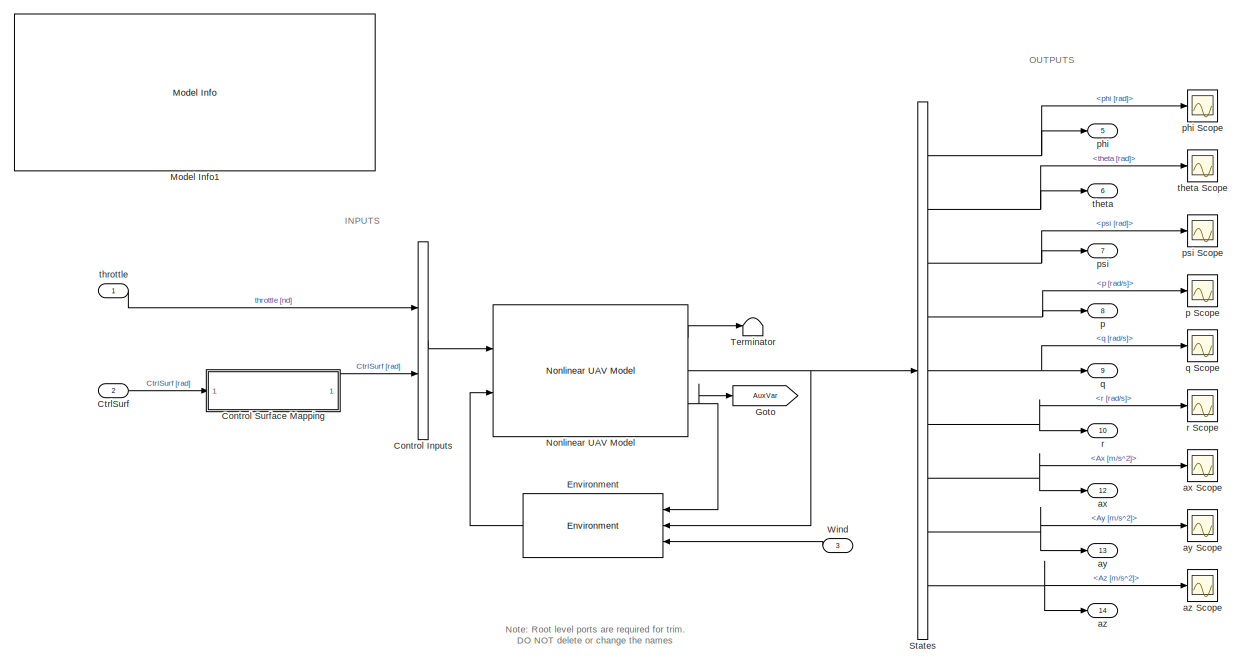
[diagram: root canvas - part 1/2, most of the canvas]
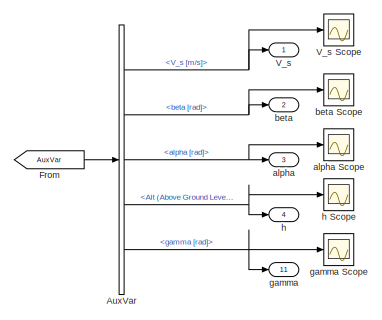
[diagram: root canvas - part 2/2, middle right region]
MODEL UAV_NL
KIND model
CONFIG InitFcn = set_param('UAV_NL/Environment/Winds','BlockChoice','Wind Bypass');\nset_param('UAV_NL/Environment/Magnetic Model','BlockChoice','WMM Bypass');
BLOCK [BusSelector] AuxVar
  OutputSignals = WindAxesParam.V_s [m/s],WindAxesParam.beta [rad],WindAxesParam.alpha [rad],Nav.Alt (Above Ground Level) [m],Nav.gamma [rad]
  Ports = [1, 5]
  SID = 446
BLOCK [BusCreator] Control Inputs
  DisplayOption = bar
  Inputs = 2
  Ports = [2, 1]
  SID = 420
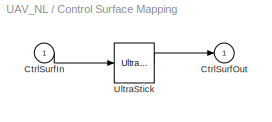
BLOCK [SubSystem] Control Surface Mapping
  AttributesFormatString = %<BlockChoice>
  BlockChoice = UltraStick
  MemberBlocks = UltraStick,miniMUTT
  Ports = [1, 1]
  RequestExecContextInheritance = off
  SID = 449
  TemplateBlock = CtrlSurfMapping_Lib/Control Surface Mapping
BLOCK [Inport] Control Surface Mapping/CtrlSurfIn
  IconDisplay = Port number
  SID = 449::8
BLOCK [Outport] Control Surface Mapping/CtrlSurfOut
  IconDisplay = Port number
  SID = 449::9
BLOCK [Reference] Control Surface Mapping/UltraStick  REF=CtrlSurfMapping_Lib/UltraStick
  Ports = [1, 1]
  SID = 449::10
  SourceBlock = CtrlSurfMapping_Lib/UltraStick
  SourceType = SubSystem
BLOCK [Inport] CtrlSurf
  IconDisplay = Port number
  Port = 2
  PortDimensions = AC.nctrls
  SID = 1
BLOCK [Reference] Environment  REF=Environment_Lib/Environment
  Ports = [3, 1]
  SID = 443
  SourceBlock = Environment_Lib/Environment
  SourceType = SubSystem
BLOCK [From] From
  GotoTag = AuxVar
  SID = 448
BLOCK [Goto] Goto
  GotoTag = AuxVar
  SID = 447
BLOCK [Reference] Model Info1  REF=simulink/Model-Wide\nUtilities/Model Info
  BlockCM = None
  DisplayStringWithTags = MODEL INFORMATION\nUMN UAV Nonlinear Simulation\nTrim and linearize with this model\n\nUniversity of Minnesota\nAerospace Engineering and Mechanics\nCopyright 2011 Regents of the University of Minnesota. All rights reserved.\n\n== SVN Info ==\nLast modified by %<LastModifiedBy> on %<LastModificationDate>
  Frame = on
  HorizontalTextAlignment = Left
  LeftAlignmentValue = 0.02
  MaskDisplayString = MODEL INFORMATION\\nUMN UAV Nonlinear Simulation\\nTrim and linearize with this model\\n\\nUniversity of Minnesota\\nAerospace Engineering and Mechanics\\nCopyright 2011 Regents of the University of Minnesota. All rights reserved.\\n\\n== SVN Info ==\\nLast modified by rega0051 on 18-Jul-2016 12:35:11
  Ports = []
  SID = 422
  SourceBlock = simulink/Model-Wide\nUtilities/Model Info
  SourceBlockDiagram = UAV_NL
  SourceType = CMBlock
  TagMaxNumber = 20
BLOCK [Reference] Nonlinear UAV Model  REF=NonlinearModel_Lib/Nonlinear UAV Model
  Ports = [2, 3]
  SID = 406
  SourceBlock = NonlinearModel_Lib/Nonlinear UAV Model
  SourceType = SubSystem
BLOCK [BusSelector] States
  OutputSignals = Euler [rad].phi [rad],Euler [rad].theta [rad],Euler [rad].psi [rad],AngVel [rad/s].p [rad/s],AngVel [rad/s].q [rad/s],AngVel [rad/s].r [rad/s],Accels [m/s^2].Ax [m/s^2],Accels [m/s^2].Ay [m/s^2],Accels [m/s^2].Az [m/s^2]
  Ports = [1, 9]
  SID = 6
BLOCK [Terminator] Terminator
  SID = 444
BLOCK [Outport] V_s
  IconDisplay = Port number
  SID = 29
BLOCK [Scope] V_s Scope
  DataFormat = StructureWithTime
  Floating = off
  NumInputPorts = 1
  Ports = [1]
  SID = 22
  SampleTime = 0
  SaveName = ScopeData3
  ShowLegends = off
BLOCK [Inport] Wind
  IconDisplay = Port number
  Port = 3
  PortDimensions = 3
  SID = 445
BLOCK [Outport] alpha
  IconDisplay = Port number
  Port = 3
  SID = 31
BLOCK [Scope] alpha Scope
  DataFormat = StructureWithTime
  Floating = off
  NumInputPorts = 1
  Ports = [1]
  SID = 23
  SampleTime = 0
  SaveName = ScopeData5
  ShowLegends = off
BLOCK [Outport] ax
  IconDisplay = Port number
  Port = 12
  SID = 432
BLOCK [Scope] ax Scope
  DataFormat = StructureWithTime
  Floating = off
  NumInputPorts = 1
  Ports = [1]
  SID = 435
  SampleTime = 0
  SaveName = ScopeData11
  ShowLegends = off
BLOCK [Outport] ay
  IconDisplay = Port number
  Port = 13
  SID = 433
BLOCK [Scope] ay Scope
  DataFormat = StructureWithTime
  Floating = off
  NumInputPorts = 1
  Ports = [1]
  SID = 436
  SampleTime = 0
  SaveName = ScopeData12
  ShowLegends = off
BLOCK [Outport] az
  IconDisplay = Port number
  Port = 14
  SID = 434
BLOCK [Scope] az Scope
  DataFormat = StructureWithTime
  Floating = off
  NumInputPorts = 1
  Ports = [1]
  SID = 437
  SampleTime = 0
  SaveName = ScopeData13
  ShowLegends = off
BLOCK [Outport] beta
  IconDisplay = Port number
  Port = 2
  SID = 30
BLOCK [Scope] beta Scope
  DataFormat = StructureWithTime
  Floating = off
  NumInputPorts = 1
  Ports = [1]
  SID = 24
  SampleTime = 0
  SaveName = ScopeData4
  ShowLegends = off
BLOCK [Outport] gamma
  IconDisplay = Port number
  Port = 11
  SID = 403
BLOCK [Scope] gamma Scope
  DataFormat = StructureWithTime
  Floating = off
  NumInputPorts = 1
  Ports = [1]
  SID = 405
  SampleTime = 0
  ShowLegends = off
BLOCK [Outport] h
  IconDisplay = Port number
  Port = 4
  SID = 408
BLOCK [Scope] h Scope
  DataFormat = StructureWithTime
  Floating = off
  NumInputPorts = 1
  Ports = [1]
  SID = 25
  SampleTime = 0
  SaveName = ScopeData9
  ShowLegends = off
BLOCK [Outport] p
  IconDisplay = Port number
  Port = 8
  SID = 409
BLOCK [Scope] p Scope
  DataFormat = StructureWithTime
  Floating = off
  NumInputPorts = 1
  Ports = [1]
  SID = 412
  SampleTime = 0
  SaveName = ScopeData1
  ShowLegends = off
BLOCK [Outport] phi
  IconDisplay = Port number
  Port = 5
  SID = 32
BLOCK [Scope] phi Scope
  DataFormat = StructureWithTime
  Floating = off
  NumInputPorts = 1
  Ports = [1]
  SID = 26
  SampleTime = 0
  SaveName = ScopeData6
  ShowLegends = off
  ZoomMode = xonly
BLOCK [Outport] psi
  IconDisplay = Port number
  Port = 7
  SID = 34
BLOCK [Scope] psi Scope
  DataFormat = StructureWithTime
  Floating = off
  NumInputPorts = 1
  Ports = [1]
  SID = 27
  SampleTime = 0
  SaveName = ScopeData8
  ShowLegends = off
BLOCK [Outport] q
  IconDisplay = Port number
  Port = 9
  SID = 410
BLOCK [Scope] q Scope
  DataFormat = StructureWithTime
  Floating = off
  NumInputPorts = 1
  Ports = [1]
  SID = 413
  SampleTime = 0
  SaveName = ScopeData2
  ShowLegends = off
BLOCK [Outport] r
  IconDisplay = Port number
  Port = 10
  SID = 411
BLOCK [Scope] r Scope
  DataFormat = StructureWithTime
  Floating = off
  NumInputPorts = 1
  Ports = [1]
  SID = 414
  SampleTime = 0
  SaveName = ScopeData10
  ShowLegends = off
BLOCK [Outport] theta
  IconDisplay = Port number
  Port = 6
  SID = 407
BLOCK [Scope] theta Scope
  DataFormat = StructureWithTime
  Floating = off
  NumInputPorts = 1
  Ports = [1]
  SID = 28
  SampleTime = 0
  SaveName = ScopeData7
  ShowLegends = off
BLOCK [Inport] throttle
  IconDisplay = Port number
  SID = 4
ANNOTATION (root): INPUTS
ANNOTATION (root): Note: Root level ports are required for trim.\nDO NOT delete or change the names
ANNOTATION (root): OUTPUTS
NET AuxVar:1 -> V_s Scope:1, V_s:1
NET AuxVar:2 -> beta Scope:1, beta:1
NET AuxVar:3 -> alpha Scope:1, alpha:1
NET AuxVar:4 -> h Scope:1, h:1
NET AuxVar:5 -> gamma Scope:1, gamma:1
LINE Control Inputs:1 -> Nonlinear UAV Model:1
LINE Control Surface Mapping/CtrlSurfIn:1 -> Control Surface Mapping/UltraStick:1
LINE Control Surface Mapping/UltraStick:1 -> Control Surface Mapping/CtrlSurfOut:1
LINE Control Surface Mapping:1 -> Control Inputs:2
LINE CtrlSurf:1 -> Control Surface Mapping:1
LINE Environment:1 -> Nonlinear UAV Model:2
LINE From:1 -> AuxVar:1
LINE Nonlinear UAV Model:1 -> Terminator:1
NET Nonlinear UAV Model:2 -> Environment:2, States:1
NET Nonlinear UAV Model:3 -> Environment:1, Goto:1
NET States:1 -> phi Scope:1, phi:1
NET States:2 -> theta Scope:1, theta:1
NET States:3 -> psi Scope:1, psi:1
NET States:4 -> p Scope:1, p:1
NET States:5 -> q Scope:1, q:1
NET States:6 -> r Scope:1, r:1
NET States:7 -> ax Scope:1, ax:1
NET States:8 -> ay Scope:1, ay:1
NET States:9 -> az Scope:1, az:1
LINE Wind:1 -> Environment:3
LINE throttle:1 -> Control Inputs:1
note: NET lines group one-source signal fan-out (src -> all destinations, sorted); 1:1 wires keep LINE
